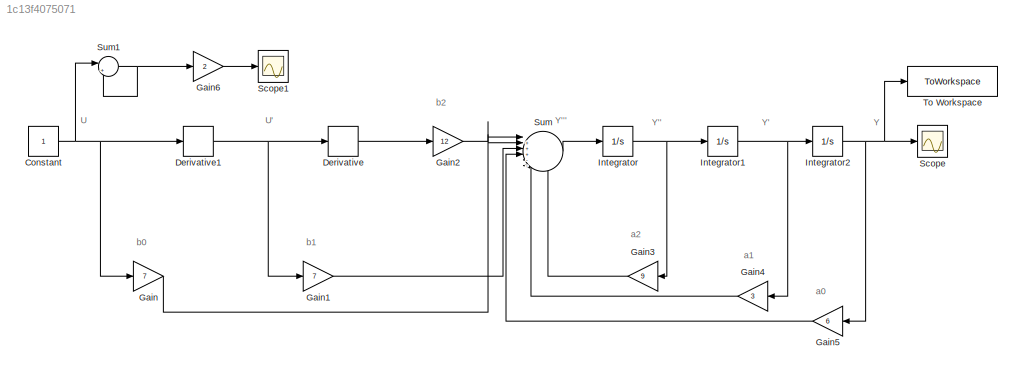
MODEL slx_1c13f4075071
KIND model
CONFIG AbsTol = auto
CONFIG EnableMultiTasking = off
CONFIG FixedStep = auto
CONFIG MaxStep = auto
CONFIG MinStep = auto
CONFIG RelTol = 1e-3
CONFIG SampleTimeConstraint = Unconstrained
CONFIG SolverName = VariableStepAuto
CONFIG StartTime = 0.0
CONFIG StopTime = 40
BLOCK [Constant] Constant
BLOCK [Derivative] Derivative
BLOCK [Derivative] Derivative1
BLOCK [Gain] Gain
  Gain = 7
BLOCK [Gain] Gain1
  Gain = 7
BLOCK [Gain] Gain2
  Gain = 12
BLOCK [Gain] Gain3
  Gain = 9
  NameLocation = top
BLOCK [Gain] Gain4
  Gain = 3
  NameLocation = top
BLOCK [Gain] Gain5
  Gain = 6
  NameLocation = top
BLOCK [Gain] Gain6
  Gain = 2
BLOCK [Integrator] Integrator
BLOCK [Integrator] Integrator1
BLOCK [Integrator] Integrator2
BLOCK [Scope] Scope
  Floating = off
  NumInputPorts = 1
  ScopeSpecificationString = Simulink.scopes.TimeScopeBlockCfg('CurrentConfiguration', extmgr.ConfigurationSet(extmgr.Configuration('Core','General UI',true),extmgr.Configuration('Core','Source UI',true),extmgr.Configuration('Sources','WiredSimulink',true),extmgr.Configuration('Visuals','Time Domain',true,'SerializedDisplays',{struct('MinYLimReal','-0.2331','MaxYLimReal','2.09788','YLabelReal','','MinYLimMag','0.00000','MaxYL...<+1426ch>
BLOCK [Scope] Scope1
  Floating = off
  NumInputPorts = 1
  ScopeSpecificationString = Simulink.scopes.TimeScopeBlockCfg('CurrentConfiguration', extmgr.ConfigurationSet(extmgr.Configuration('Core','General UI',true),extmgr.Configuration('Core','Source UI',true),extmgr.Configuration('Sources','WiredSimulink',true,'DataLoggingVariableName','ScopeData1'),extmgr.Configuration('Visuals','Time Domain',true,'SerializedDisplays',{struct('MinYLimReal','0.9','MaxYLimReal','1.1','YLabelReal','...<+1330ch>
BLOCK [Sum] Sum
  Inputs = |+++---
BLOCK [Sum] Sum1
  Inputs = |+-
BLOCK [ToWorkspace] To Workspace
  FixptAsFi = on
  MaxDataPoints = inf
  SampleTime = -1
  SaveFormat = Timeseries
  VariableName = simout
ANNOTATION (root): U
ANNOTATION (root): U'
ANNOTATION (root): Y
ANNOTATION (root): Y'
ANNOTATION (root): Y''
ANNOTATION (root): Y'''
ANNOTATION (root): a0
ANNOTATION (root): a1
ANNOTATION (root): a2
ANNOTATION (root): b0
ANNOTATION (root): b1
ANNOTATION (root): b2
NET Constant:1 -> Derivative1:1, Gain:1, Sum1:1
NET Derivative1:1 -> Derivative:1, Gain1:1
LINE Derivative:1 -> Gain2:1
LINE Gain1:1 -> Sum:3
LINE Gain2:1 -> Sum:1
LINE Gain3:1 -> Sum:6
LINE Gain4:1 -> Sum:5
LINE Gain5:1 -> Sum:4
LINE Gain6:1 -> Scope1:1
LINE Gain:1 -> Sum:2
NET Integrator1:1 -> Gain4:1, Integrator2:1
NET Integrator2:1 -> Gain5:1, Scope:1, To Workspace:1
NET Integrator:1 -> Gain3:1, Integrator1:1
NET Sum1:1 -> Gain6:1, Sum1:2
LINE Sum:1 -> Integrator:1
note: NET lines group one-source signal fan-out (src -> all destinations, sorted); 1:1 wires keep LINE
